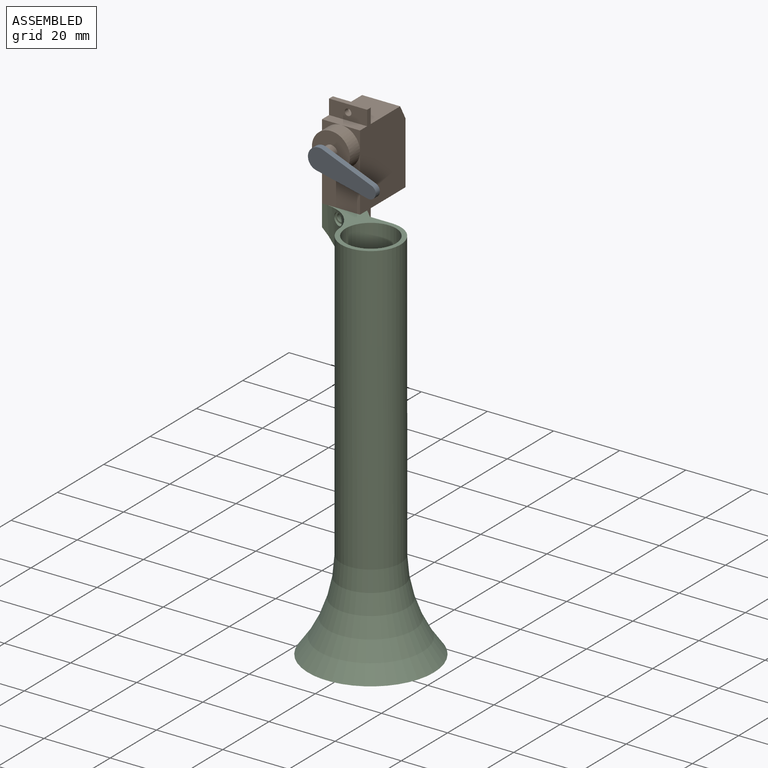
[diagram: assembled view]
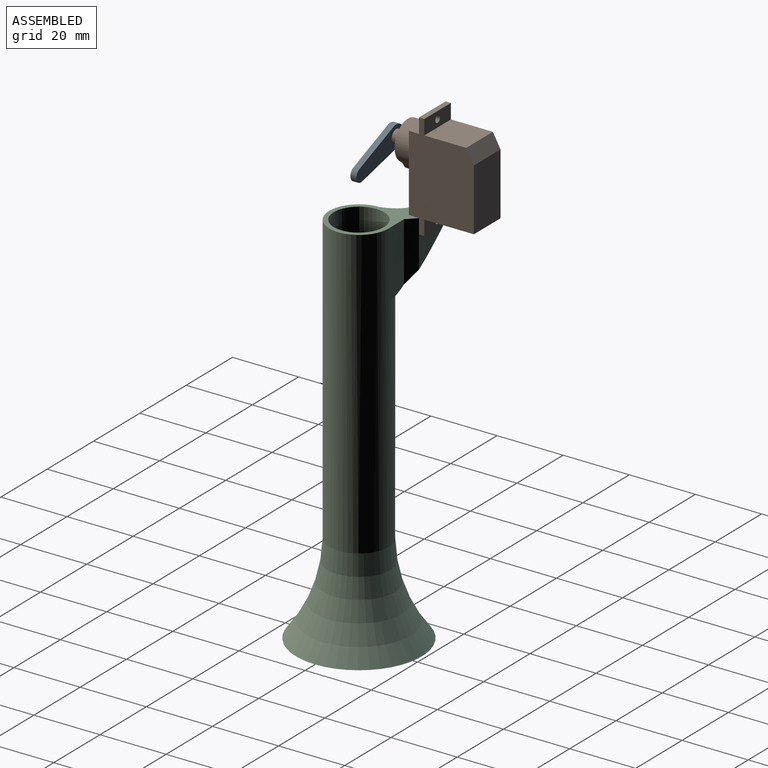
[diagram: assembled view, second angle]
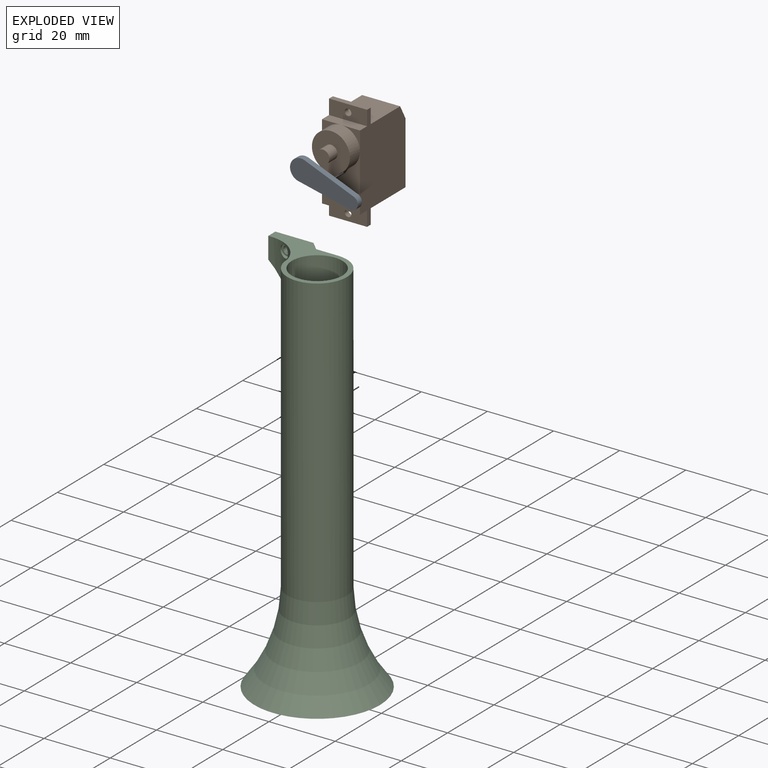
[diagram: exploded view]
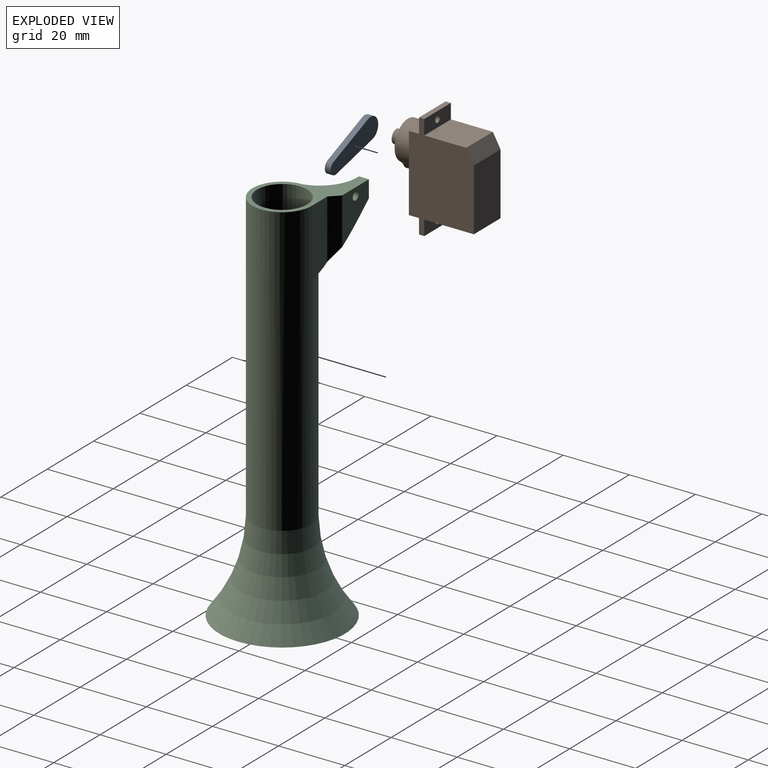
[diagram: exploded view, second angle]
ASSEMBLY  parts=3 mates=2
PART A: 6 faces, bbox 21.3x6.5x1.8 mm
  f0: cylinder r=3.25mm len=6.5mm, axis (0,0,-1), area 20.2mm2, adj f1,f3,f4,f5
  f1: plane 15.5x1.8mm, normal (0.08,-1,0), area 28mm2, adj f0,f2,f4,f5
  f2: cylinder r=2mm len=4mm, axis (0,0,-1), area 11.3mm2, adj f1,f3,f4,f5
  f3: plane 15.5x1.8mm, normal (0.08,1,0), area 28mm2, adj f0,f2,f4,f5
  f4: plane 21.25x6.5mm, normal (0,0,1), area 106.9mm2, adj f0,f1,f2,f3
  f5: plane 21.25x6.5mm, normal (0,0,-1), area 106.9mm2, adj f0,f1,f2,f3
PART B: 26 faces, bbox 11.5x32x27.5 mm
  f0: plane 32x19.65mm, normal (-1,0,0), area 461.5mm2, adj f2,f3,f4,f5,f6,f7,f8,f9
  f1: plane 32x19.65mm, normal (1,0,0), area 461.5mm2, adj f2,f3,f4,f5,f6,f7,f8,f9
  f2: plane 11.5x3.05mm, normal (0,1,0), area 35.1mm2, adj f0,f1,f11,f16,f18
  f3: plane 11.5x1.6mm, normal (0,-1,0), area 18.4mm2, adj f0,f1,f4,f15
  f4: plane 11.5x4.5mm, normal (0,0,-1), area 48.6mm2, adj f0,f1,f3,f5,f23
  f5: plane 15x11.5mm, normal (0,-1,0), area 172.5mm2, adj f0,f1,f4,f6
  f6: plane 18.81x11.5mm, normal (0,0,-1), area 216.3mm2, adj f0,f1,f5,f7
  f7: plane 11.5x4.19mm, normal (0,0.48,-0.88), area 55.1mm2, adj f0,f1,f6,f8
  f8: plane 12.69x11.5mm, normal (0,1,0), area 145.9mm2, adj f0,f1,f7,f9
  f9: plane 11.5x4.5mm, normal (0,0,-1), area 48.6mm2, adj f0,f1,f8,f10,f22
  f10: plane 11.5x1.6mm, normal (0,1,0), area 18.4mm2, adj f0,f1,f9,f11
  f11: plane 11.5x4.5mm, normal (0,0,1), area 48.6mm2, adj f0,f1,f2,f10,f22
  f12: plane 13.3x11.5mm, normal (0,0,1), area 97.5mm2, adj f17,f19,f20,f21,f24
  f13: plane 17.25x11.5mm, normal (0,0,1), area 140.3mm2, adj f0,f1,f14,f17,f19,f20,f21
  f14: plane 11.5x3.05mm, normal (0,-1,0), area 35.1mm2, adj f0,f1,f13,f15
  f15: plane 11.5x4.5mm, normal (0,0,1), area 48.6mm2, adj f0,f1,f3,f14,f23
  f16: plane 5.75x5.75mm, normal (0,0,1), area 7.1mm2, adj f1,f2,f17
  f17: cylinder r=5.75mm len=11.5mm, axis (0,0,1), area 127.4mm2, adj f12,f13,f16,f18,f20,f21
  f18: plane 5.75x5.75mm, normal (0,0,1), area 7.1mm2, adj f0,f2,f17
  f19: cylinder r=1.8mm len=4.35mm, axis (0,0,1), area 17mm2, adj f12,f13,f20,f21
  f20: cylinder r=5mm len=4.35mm, axis (0,0,-1), area 10.7mm2, adj f12,f13,f17,f19
  f21: cylinder r=5mm len=4.35mm, axis (0,0,-1), area 10.7mm2, adj f12,f13,f17,f19
  f22: cylinder r=1mm len=2mm, axis (0,0,1), area 10.1mm2, adj f9,f11
  f23: cylinder r=1mm len=2mm, axis (0,0,1), area 10.1mm2, adj f4,f15
  f24: cylinder r=2mm len=4mm, axis (0,0,-1), area 44mm2, adj f12,f25
  f25: plane 4x4mm, normal (0,0,1), area 12.6mm2, adj f24
PART C: 14 faces, bbox 47.8x47.8x118.1 mm
  f0: cylinder r=11.41mm len=20mm, axis (0,0,1), area 209.9mm2, adj f1,f3,f8,f10,f12
  f1: cylinder r=9mm len=87.06mm, axis (0,0,-1), area 4640.5mm2, adj f0,f3,f5,f6,f12
  f2: cylinder r=7.62mm len=114.3mm, axis (0,0,-1), area 5472.4mm2, adj f3,f4
  f3: plane 29.81x20.65mm, normal (0,0,1), area 152.6mm2, adj f0,f1,f2,f6,f7,f8,f13
  f4: plane 38x38mm, normal (0,0,-1), area 951.7mm2, adj f2,f5
  f5: torus R=53.99mm, axis (0,0,-1), area 2320.1mm2, adj f1,f4
  f6: plane 20x6.62mm, normal (0,1,0), area 127.2mm2, adj f1,f3,f12,f13
  f7: plane 14.11x11.55mm, normal (0,1,0), area 109mm2, adj f3,f8,f9,f12,f13
  f8: plane 6.62x3.19mm, normal (-1,0,0), area 17.8mm2, adj f0,f3,f7,f12
  f9: cylinder r=1.25mm len=3mm, axis (0,1,0), area 23.6mm2, adj f7,f11
  f10: cylinder r=1.75mm len=3.5mm, axis (0,-1,0), area 14mm2, adj f0,f11
  f11: plane 3.5x3.5mm, normal (0,-1,0), area 4.7mm2, adj f9,f10
  f12: cone r=24mm half-angle=45deg, axis (0,0,1), area 114.3mm2, adj f0,f1,f6,f7,f8,f13
  f13: plane 17.9x2.72mm, normal (0.71,0.71,0), area 59.9mm2, adj f3,f6,f7,f12
PLACE A rot(axis=(0.98,0.15,-0.15),91.3deg) t=(5.75,-56.4,102.65)mm
PLACE B rot(axis=(1,0,0),90deg) t=(0,-28.9,85.4)mm
PLACE C t=(20.81,-57.15,-28.9)mm
MATE revolute A.f0 <-> B.f17  axis (0,1,0) through (5.75,-56.4,102.65)mm
MATE fastened C.f9 <-> B.f23  axis (0,1,0) through (5.75,-45.5,83.05)mm
